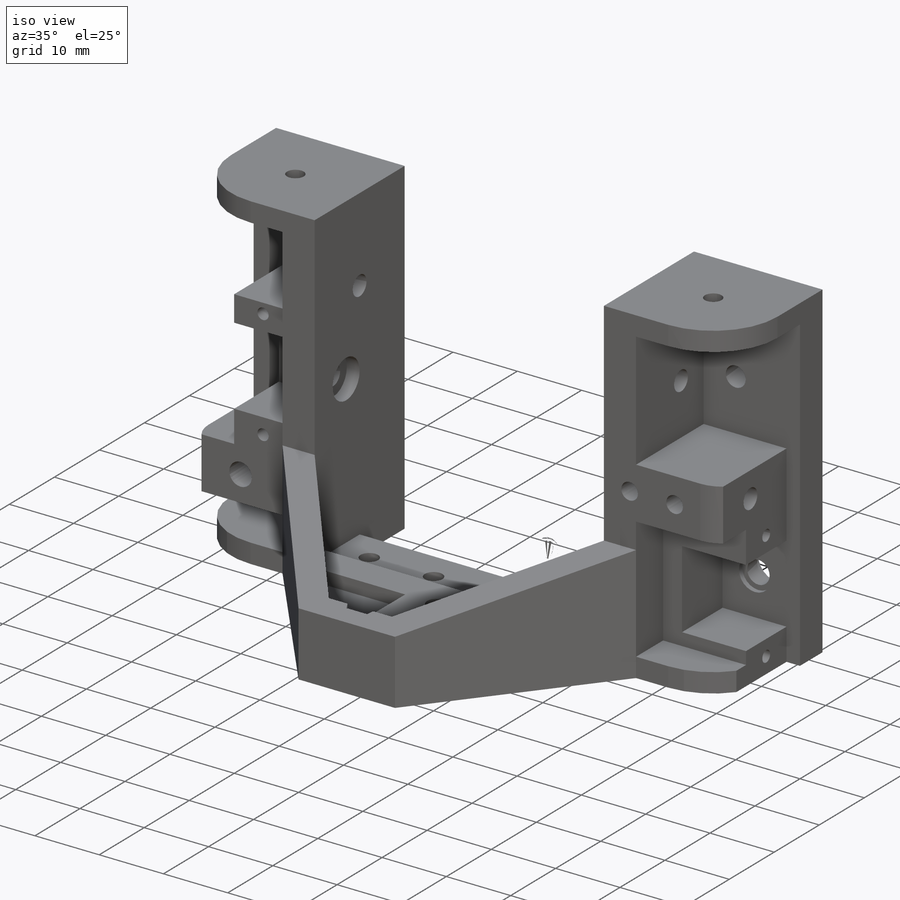
[diagram: iso view]
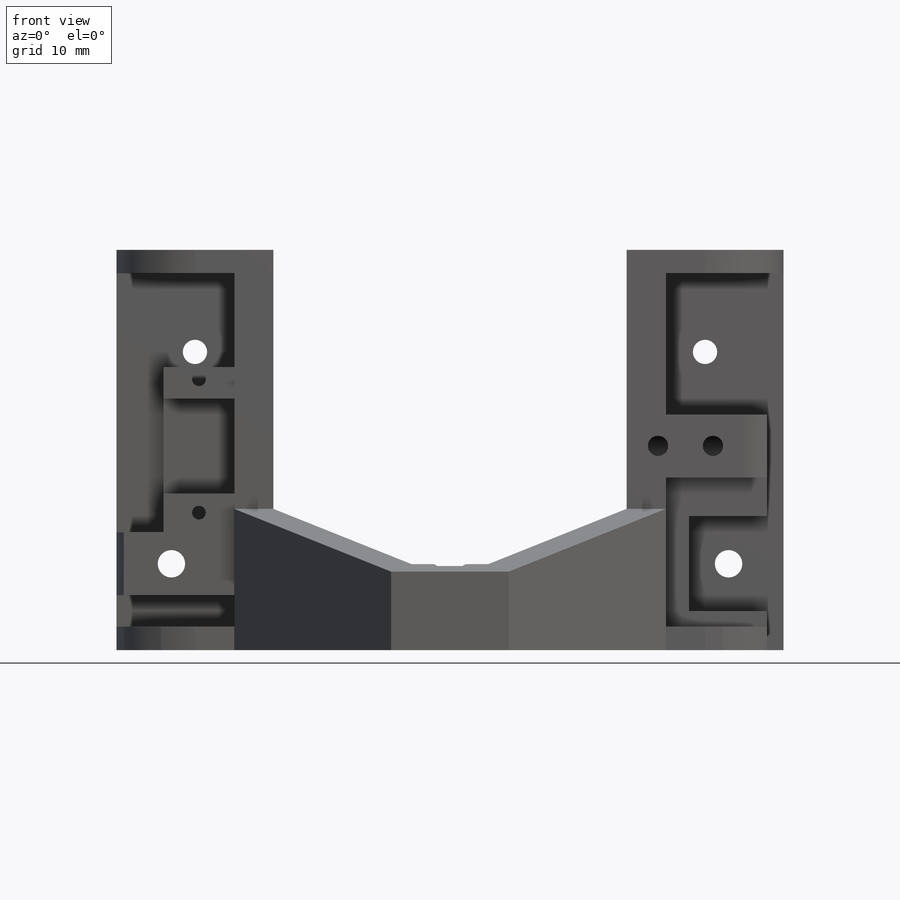
[diagram: front view]
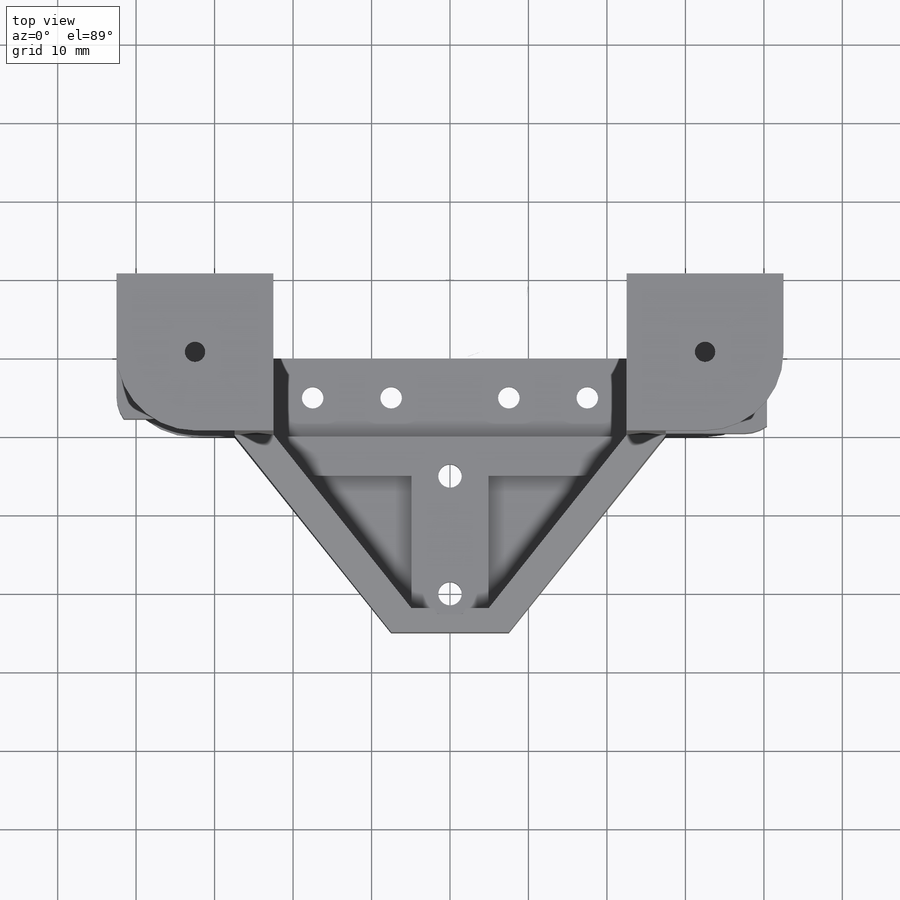
[diagram: top view]
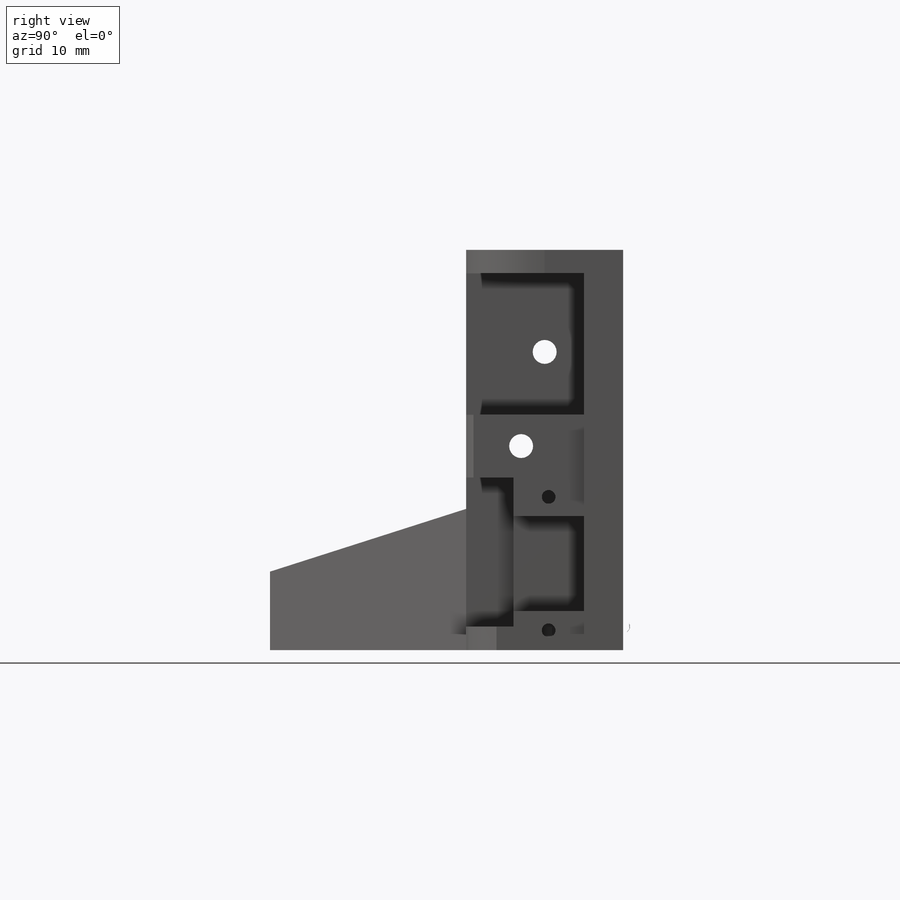
[diagram: right view]
SOLIDWORKS PART (.sldprt)
format: sldprt  version: not decoded by parser v0  size: 1,036,288 bytes
history: native  units: mm
features: sketch x37, cut_extrude x16, extrude x13, thread x4, hole x3, material x1, plane x1, mirror x1, fillet x1 (+13 scaffold rows collapsed)
feature tree (90):
  scaffold x13  (default folders/planes/origin — collapsed)
  material  "ABS"
  sketch  "Sketch1"  dims[c1.D3=3.5mm c1.D10=3.1mm c1.D1=70.0mm c1.D2=15.0mm c1.D4=8.0mm c1.D5=55.0mm c2.D1=71.0mm c2.D5=7.0mm c2.D6=~28.830128mm c2.D2=22.5mm c3.D6=7.0mm c3.D7=45.0mm c3.D8=35.0mm c3.D9=3.0mm c3.D11=10.0mm c3.D12=2.75mm c3.D13=5.0mm]
  extrude  "main flange"  Depth=5mm
  plane  "Plane1"  Offset=22.5mm
  sketch  "Sketch2"  dims[c1.D2=3.05mm c1.D5=3.05mm c1.D1=15.0mm c1.D3=23.0mm c1.D4=13.0mm c2.D5=40.0mm c2.D6=35.0mm c2.D7=3.0mm]
  extrude  "side flange"  Depth=5mm
  sketch  "Sketch8"  dims[D1=6.0mm]
  cut_extrude  "bearing cutout"  Depth=2mm
  mirror  "Mirror1"
  sketch  "Sketch11"  dims[D1=10.0mm D2=2.6mm]
  extrude  "Boss-Extrude3"  Depth=3mm
  sketch  "Sketch12"  dims[c1.D2=~4.070652mm c1.D3=3.0mm c1.D1=3.0mm c2.D2=8.0mm c2.D4=3.0mm]
  extrude  "Boss-Extrude4"  [1 undecoded]
  hole  "CSK for M3 Flat Head Machine Screw1"  Diameter=3.6mm Depth=10mm
  sketch  "Sketch14"  dims[D1=3.0mm]
  sketch  "Sketch15"  dims[hole-wizard template sketch: 57 standard entries collapsed; hole parameters kept: c17.Thru Hole Dia.=3.6mm c17.Thru Hole Depth=10.0mm c17.C'Sink Dia.=6.3mm c17.D4=~19.358014mm c17.C'Sink Angle=90.0deg c17.Head Clearance=0.15mm]
  sketch  "Sketch16"  dims[D1=10.0mm D2=2.6mm]
  extrude  "Top support"  Depth=3mm
  sketch  "Sketch18"  dims[D1=4.0mm D2=4.0mm]
  extrude  "Boss-Extrude5"  [1 undecoded]
  sketch  "Sketch19"  dims[D1=4.0mm D2=4.0mm]
  extrude  "Boss-Extrude6"  [1 undecoded]
  fillet  "Fillet1"  Radius=5mm
  hole  "M3x0.5 Tapped Hole1"  Diameter=2.6mm Depth=7.5mm
  sketch  "Sketch21"  dims[D1=4.0mm D2=3.0mm D3=7.0mm]
  sketch  "Sketch20"  dims[hole-wizard template sketch: 46 standard entries collapsed; hole parameters kept: c15.Tap Drill Dia.=2.6mm c15.Tap Drill Depth=7.5mm c15.D3=~14.816244mm c15.Drill Angle=118.0deg]
  thread  "Hole Thread1"  Diameter=6mm  [1 undecoded]
  thread  "Hole Thread2"  Diameter=6mm  [1 undecoded]
  hole  "M3x0.5 Tapped Hole2"  Diameter=2.6mm Depth=7.5mm
  sketch  "Sketch23"  dims[D1=4.0mm D2=7.0mm D3=4.0mm]
  sketch  "Sketch22"  dims[hole-wizard template sketch: 46 standard entries collapsed; hole parameters kept: c15.Tap Drill Dia.=2.6mm c15.Tap Drill Depth=7.5mm c15.D3=~14.816244mm c15.Drill Angle=118.0deg]
  thread  "Hole Thread3"  Diameter=6mm  [1 undecoded]
  thread  "Hole Thread4"  Diameter=6mm  [1 undecoded]
  sketch  "Sketch24"  dims[D1=5.0mm]
  cut_extrude  "Cut-Extrude1"  Depth=0.75mm
  sketch  "Sketch25"  dims[D1=5.0mm]
  cut_extrude  "Cut-Extrude2"  Depth=0.75mm
  sketch  "Sketch26"  dims[c1.D1=5.2mm c1.D2=~6.865941mm c2.D2=90.0deg c3.D2=2.85mm c3.D3=10.0mm]
  extrude  "Boss-Extrude7"  Depth=10mm
  sketch  "Sketch27"  dims[D1=6.0mm]
  sketch  "Sketch30"
  cut_extrude  "Cut-Extrude3"  Depth=1mm
  sketch  "Sketch31"
  cut_extrude  "Cut-Extrude4"  Depth=7mm
  sketch  "Sketch32"  dims[D1=12.1mm D2=5.05mm D3=4.9mm]
  extrude  "Motor mount"  Depth=9mm
  sketch  "Sketch33"
  cut_extrude  "Cut-Extrude6"  [1 undecoded]
  sketch  "Sketch34"  dims[c1.D1=1.75mm c1.D2=2.5mm c1.D3=2.5mm c2.D2=17.0mm c2.D3=8.5mm]
  cut_extrude  "Cut-Extrude7"  Depth=7mm
  sketch  "Sketch35"  dims[D1=5.05mm D2=12.1mm D3=4.0mm]
  extrude  "Boss-Extrude9"  Depth=9mm
  sketch  "Sketch36"
  cut_extrude  "Cut-Extrude8"  Depth=2.1mm
  sketch  "Sketch37"  dims[D1=1.75mm D2=8.5mm D3=8.5mm]
  cut_extrude  "Cut-Extrude9"  Depth=7mm
  sketch  "Sketch38"  dims[D1=10.0mm]
  sketch  "Sketch39"  dims[D1=10.0mm]
  cut_extrude  "Cut-Extrude11"  [1 undecoded]
  sketch  "Sketch40"  dims[D1=2.75mm D2=7.5mm D3=10.0mm D4=5.0mm]
  cut_extrude  "Mount Holes"  [1 undecoded]
  sketch  "Sketch41"  dims[D1=6.0mm]
  cut_extrude  "Bearing Holder"  Depth=2mm
  sketch  "Sketch42"  dims[D1=6.0mm]
  cut_extrude  "Cut-Extrude14"  Depth=2mm
  sketch  "Sketch44"  dims[D1=25.0mm D2=15.0mm D3=55.0mm]
  extrude  "Boss-Extrude10"  Depth=3mm
  sketch  "Sketch45"  dims[D1=3.0mm]
  extrude  "Boss-Extrude11"  Depth=15mm
  sketch  "Sketch46"  dims[D1=10.0mm]
  cut_extrude  "Cut-Extrude15"  Depth=15mm
  sketch  "Sketch50"  dims[D1=5.0mm D2=17.0mm]
  extrude  "Boss-Extrude12"  Depth=2mm
  sketch  "Sketch48"  dims[D2=3.0mm D1=15.0mm D3=5.0mm]
  cut_extrude  "Cut-Extrude16"  [1 undecoded]
  sketch  "Sketch51"  dims[D1=5.5mm]
  cut_extrude  "Cut-Extrude17"  [1 undecoded]
decode coverage: 62 of 75 modeling features carry decoded parameters
note: ~ marks probable driven/reference dimensions
note: 12 parameter values undecoded
summary: no parameter record found for 8 features
note: suppression state not decoded; provenance and decode notes live in map.json
